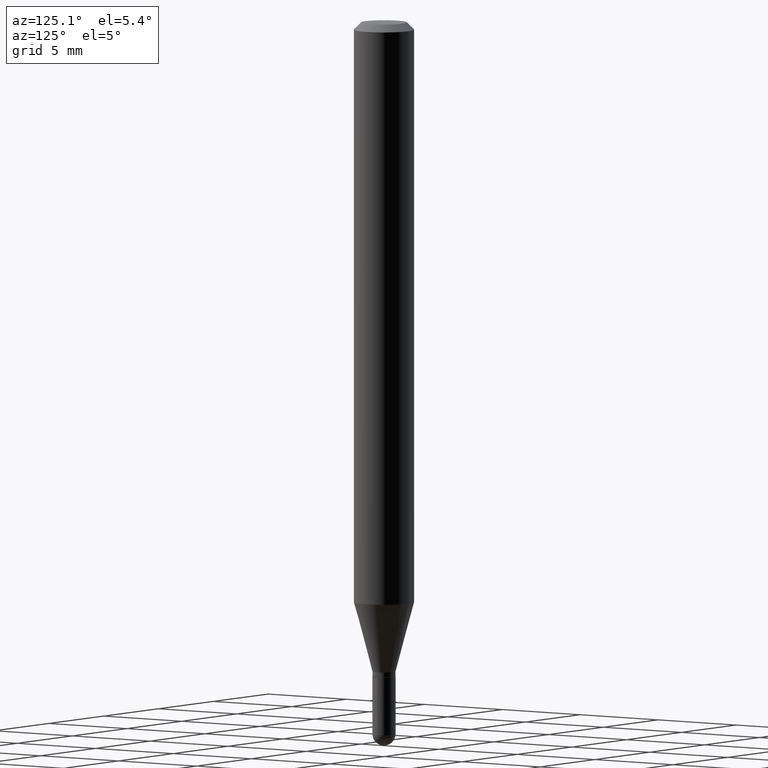
[diagram: clean part render]
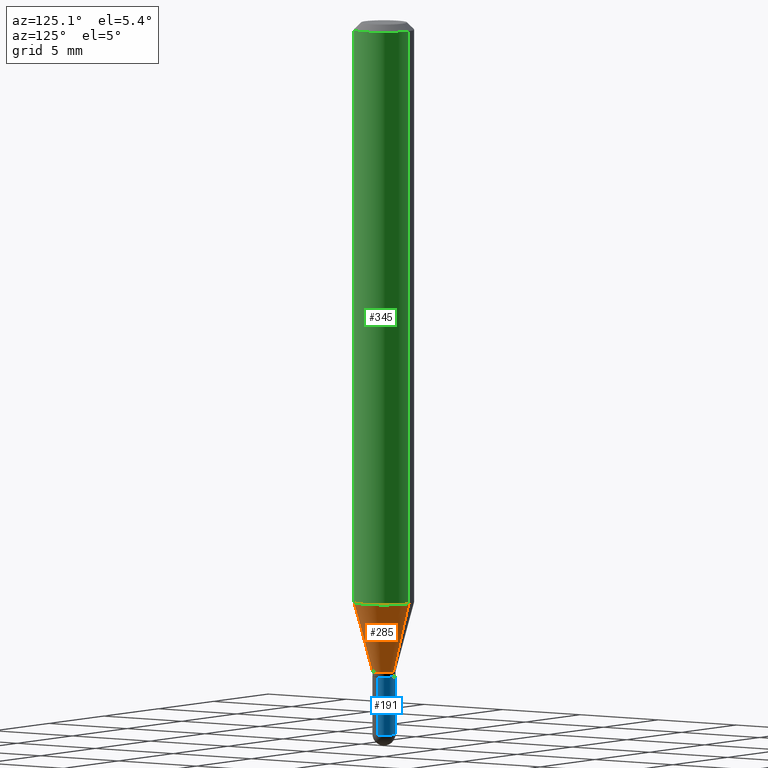
[diagram: same view with three faces highlighted in distinct colors, each labeled with its STEP entity id]
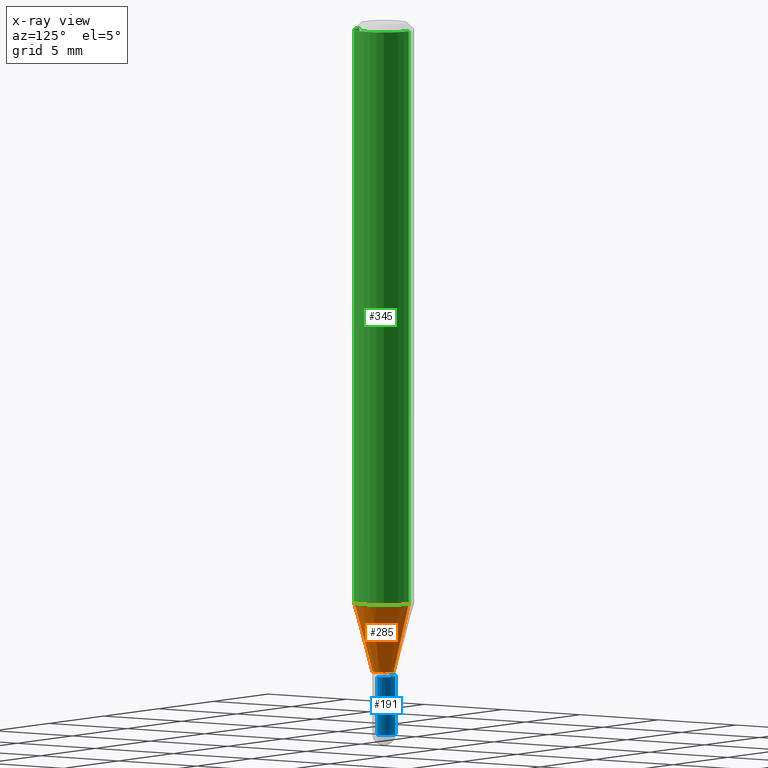
[diagram: x-ray of the same camera — body ghosted, the three highlighted faces saturated]
A machine part, auxiliary view with three faces highlighted in distinct colors.
The next image is the same camera in x-ray (body ghosted, the three faces saturated) — at least one of them is partly hidden behind the body in this view.
Their STEP definitions:

[orange] entity #285 — the highlighted conical surface has half-angle 15 deg.
#6 = AXIS2_PLACEMENT_3D ( 'NONE', #458, #24, #225 ) ;
#8 = CARTESIAN_POINT ( 'NONE',  ( -1.675911042644369543E-16, -0.02400000000000462527, -1.346000000000000085 ) ) ;
#24 = DIRECTION ( 'NONE',  ( -2.445477235489228020E-29, 3.491469267599920324E-15, 1.000000000000000000 ) ) ;
#54 = ORIENTED_EDGE ( 'NONE', *, *, #268, .F. ) ;
#64 = DIRECTION ( 'NONE',  ( 1.839019923739601893E-15, 0.2588190451025252359, 0.9659258262890670910 ) ) ;
#78 = DIRECTION ( 'NONE',  ( -6.982962677686265133E-15, -1.000000000000000000, 0.000000000000000000 ) ) ;
#91 = CIRCLE ( 'NONE', #141, 0.02399999999999992764 ) ;
#116 = VECTOR ( 'NONE', #64, 39.37007874015748854 ) ;
#121 = EDGE_CURVE ( 'NONE', #132, #506, #445, .T. ) ;
#132 = VERTEX_POINT ( 'NONE', #289 ) ;
#137 = CARTESIAN_POINT ( 'NONE',  ( 2.940236515241945390E-29, -4.197849517249188631E-15, -1.202316043908598697 ) ) ;
#141 = AXIS2_PLACEMENT_3D ( 'NONE', #352, #504, #78 ) ;
#158 = DIRECTION ( 'NONE',  ( -1.807323732225331717E-15, -0.2588190451025184080, 0.9659258262890689783 ) ) ;
#160 = ORIENTED_EDGE ( 'NONE', *, *, #246, .T. ) ;
#173 = DIRECTION ( 'NONE',  ( -2.445477235489228020E-29, 3.491469267599920324E-15, 1.000000000000000000 ) ) ;
#184 = CIRCLE ( 'NONE', #261, 0.06250000000000000000 ) ;
#225 = DIRECTION ( 'NONE',  ( -6.982962677686265133E-15, -1.000000000000000000, 0.000000000000000000 ) ) ;
#246 = EDGE_CURVE ( 'NONE', #443, #474, #344, .T. ) ;
#261 = AXIS2_PLACEMENT_3D ( 'NONE', #137, #173, #374 ) ;
#268 = EDGE_CURVE ( 'NONE', #506, #474, #184, .T. ) ;
#285 = ADVANCED_FACE ( 'NONE', ( #419 ), #490, .T. ) ;
#289 = CARTESIAN_POINT ( 'NONE',  ( -1.675911042644369543E-16, -0.02400000000000462527, -1.346000000000000085 ) ) ;
#324 = CARTESIAN_POINT ( 'NONE',  ( -4.364351673553623829E-16, -0.06250000000000421885, -1.202316043908598253 ) ) ;
#326 = VECTOR ( 'NONE', #158, 39.37007874015748854 ) ;
#344 = LINE ( 'NONE', #463, #116 ) ;
#352 = CARTESIAN_POINT ( 'NONE',  ( 3.291612358968501825E-29, -4.699517634189492675E-15, -1.346000000000000085 ) ) ;
#361 = EDGE_CURVE ( 'NONE', #132, #443, #91, .T. ) ;
#362 = CARTESIAN_POINT ( 'NONE',  ( 4.440892098500918040E-16, 0.06249999999999577421, -1.202316043908598919 ) ) ;
#374 = DIRECTION ( 'NONE',  ( -6.982962677686265922E-15, -1.000000000000000000, 4.370956789862821150E-15 ) ) ;
#384 = ORIENTED_EDGE ( 'NONE', *, *, #121, .F. ) ;
#419 = FACE_OUTER_BOUND ( 'NONE', #435, .T. ) ;
#429 = CARTESIAN_POINT ( 'NONE',  ( 3.073097332162742703E-16, 0.02399999999999522307, -1.346000000000000085 ) ) ;
#435 = EDGE_LOOP ( 'NONE', ( #497, #160, #54, #384 ) ) ;
#443 = VERTEX_POINT ( 'NONE', #429 ) ;
#445 = LINE ( 'NONE', #8, #326 ) ;
#458 = CARTESIAN_POINT ( 'NONE',  ( 3.291612358968501825E-29, -4.699517634189492675E-15, -1.346000000000000085 ) ) ;
#463 = CARTESIAN_POINT ( 'NONE',  ( 1.705302565824563915E-16, 0.02399999999999522654, -1.346000000000000085 ) ) ;
#474 = VERTEX_POINT ( 'NONE', #362 ) ;
#490 = CONICAL_SURFACE ( 'NONE', #6, 0.02399999999999992764, 0.2617993877991505181 ) ;
#497 = ORIENTED_EDGE ( 'NONE', *, *, #361, .T. ) ;
#504 = DIRECTION ( 'NONE',  ( -2.445477235489228020E-29, 3.491469267599920324E-15, 1.000000000000000000 ) ) ;
#506 = VERTEX_POINT ( 'NONE', #324 ) ;

[blue] entity #191 — the highlighted cylindrical surface (edge-blend (fillet) strip) has radius 0.6096 mm, axis along (-0, 0, 1).
#32 = DIRECTION ( 'NONE',  ( -2.445468806185136597E-29, 3.491481338843145583E-15, 1.000000000000000000 ) ) ;
#39 = VERTEX_POINT ( 'NONE', #413 ) ;
#46 = CARTESIAN_POINT ( 'NONE',  ( -0.02400000000000000397, -4.773407319219470337E-15, -1.475999999999999979 ) ) ;
#56 = DIRECTION ( 'NONE',  ( -2.445468806185136597E-29, 3.491481338843145583E-15, 1.000000000000000000 ) ) ;
#61 = AXIS2_PLACEMENT_3D ( 'NONE', #492, #56, #139 ) ;
#67 = VERTEX_POINT ( 'NONE', #81 ) ;
#76 = AXIS2_PLACEMENT_3D ( 'NONE', #103, #342, #382 ) ;
#80 = DIRECTION ( 'NONE',  ( -2.445468806185136597E-29, 3.491481338843145583E-15, 1.000000000000000000 ) ) ;
#81 = CARTESIAN_POINT ( 'NONE',  ( 0.02400000000000000397, -5.111528680066364398E-15, -1.475999999999999979 ) ) ;
#103 = CARTESIAN_POINT ( 'NONE',  ( 3.609511957929261635E-29, -5.153426456132482850E-15, -1.475999999999999979 ) ) ;
#111 = EDGE_LOOP ( 'NONE', ( #239, #449, #325, #279, #494 ) ) ;
#112 = CARTESIAN_POINT ( 'NONE',  ( 0.02400000000000000050, -4.902039799735776870E-15, -1.356000000000000316 ) ) ;
#124 = VERTEX_POINT ( 'NONE', #46 ) ;
#127 = DIRECTION ( 'NONE',  ( -2.445468806185136877E-29, 3.491481338843145188E-15, 1.000000000000000000 ) ) ;
#130 = CARTESIAN_POINT ( 'NONE',  ( 0.02400000000000000397, -1.675911042644704316E-16, 1.170282426191024667E-30 ) ) ;
#139 = DIRECTION ( 'NONE',  ( 1.000000000000000000, -6.982962677686266711E-15, 4.876176775795935232E-29 ) ) ;
#142 = DIRECTION ( 'NONE',  ( -2.445468806185136877E-29, 3.491481338843145188E-15, 1.000000000000000000 ) ) ;
#144 = LINE ( 'NONE', #351, #209 ) ;
#175 = CIRCLE ( 'NONE', #470, 0.02400000000000000050 ) ;
#182 = LINE ( 'NONE', #130, #241 ) ;
#186 = EDGE_CURVE ( 'NONE', #67, #39, #306, .T. ) ;
#191 = ADVANCED_FACE ( 'NONE', ( #299 ), #216, .T. ) ;
#193 = DIRECTION ( 'NONE',  ( 1.000000000000000000, -6.982962677686250144E-15, 0.000000000000000000 ) ) ;
#209 = VECTOR ( 'NONE', #142, 39.37007874015748143 ) ;
#216 = CYLINDRICAL_SURFACE ( 'NONE', #61, 0.02400000000000000397 ) ;
#220 = AXIS2_PLACEMENT_3D ( 'NONE', #396, #32, #193 ) ;
#234 = CARTESIAN_POINT ( 'NONE',  ( -0.02400000000000000050, -4.773407319219470337E-15, -1.356000000000000316 ) ) ;
#239 = ORIENTED_EDGE ( 'NONE', *, *, #452, .T. ) ;
#241 = VECTOR ( 'NONE', #127, 39.37007874015748143 ) ;
#244 = CARTESIAN_POINT ( 'NONE',  ( 3.316055701187045333E-29, -4.734448695471306216E-15, -1.356000000000000316 ) ) ;
#274 = CIRCLE ( 'NONE', #220, 0.02400000000000000397 ) ;
#279 = ORIENTED_EDGE ( 'NONE', *, *, #288, .F. ) ;
#288 = EDGE_CURVE ( 'NONE', #67, #312, #182, .T. ) ;
#299 = FACE_OUTER_BOUND ( 'NONE', #111, .T. ) ;
#306 = CIRCLE ( 'NONE', #76, 0.02400000000000000397 ) ;
#312 = VERTEX_POINT ( 'NONE', #112 ) ;
#325 = ORIENTED_EDGE ( 'NONE', *, *, #468, .F. ) ;
#342 = DIRECTION ( 'NONE',  ( -2.445468806185136597E-29, 3.491481338843145583E-15, 1.000000000000000000 ) ) ;
#351 = CARTESIAN_POINT ( 'NONE',  ( -0.02400000000000000397, 1.705302565824240728E-16, -1.180544421661177751E-30 ) ) ;
#363 = VERTEX_POINT ( 'NONE', #234 ) ;
#382 = DIRECTION ( 'NONE',  ( 1.000000000000000000, -6.982962677686250144E-15, 0.000000000000000000 ) ) ;
#385 = EDGE_CURVE ( 'NONE', #124, #363, #144, .T. ) ;
#396 = CARTESIAN_POINT ( 'NONE',  ( 3.609511957929261635E-29, -5.153426456132482850E-15, -1.475999999999999979 ) ) ;
#406 = DIRECTION ( 'NONE',  ( 1.000000000000000000, -6.982962677686251722E-15, 0.000000000000000000 ) ) ;
#413 = CARTESIAN_POINT ( 'NONE',  ( 1.675911042645066206E-16, 0.02399999999999486572, -1.475999999999999979 ) ) ;
#449 = ORIENTED_EDGE ( 'NONE', *, *, #385, .T. ) ;
#452 = EDGE_CURVE ( 'NONE', #39, #124, #274, .T. ) ;
#468 = EDGE_CURVE ( 'NONE', #312, #363, #175, .T. ) ;
#470 = AXIS2_PLACEMENT_3D ( 'NONE', #244, #80, #406 ) ;
#492 = CARTESIAN_POINT ( 'NONE',  ( 0.000000000000000000, 0.000000000000000000, 0.000000000000000000 ) ) ;
#494 = ORIENTED_EDGE ( 'NONE', *, *, #186, .T. ) ;

[green] entity #345 — the highlighted cylindrical surface (edge-blend (fillet) strip) has radius 1.5875 mm, axis along (-0, 0, 1).
#1 = LINE ( 'NONE', #390, #440 ) ;
#3 = LINE ( 'NONE', #154, #249 ) ;
#28 = EDGE_LOOP ( 'NONE', ( #135, #367, #195, #198 ) ) ;
#35 = CIRCLE ( 'NONE', #350, 0.06250000000000000000 ) ;
#69 = AXIS2_PLACEMENT_3D ( 'NONE', #187, #399, #475 ) ;
#71 = VERTEX_POINT ( 'NONE', #251 ) ;
#96 = CARTESIAN_POINT ( 'NONE',  ( 3.668215853233844657E-31, -5.237203901399883839E-17, -0.01500000000000000812 ) ) ;
#118 = CARTESIAN_POINT ( 'NONE',  ( -4.364351673553912750E-16, -0.06250000000000005551, -0.01499999999999979128 ) ) ;
#135 = ORIENTED_EDGE ( 'NONE', *, *, #268, .T. ) ;
#137 = CARTESIAN_POINT ( 'NONE',  ( 2.940236515241945390E-29, -4.197849517249188631E-15, -1.202316043908598697 ) ) ;
#154 = CARTESIAN_POINT ( 'NONE',  ( 4.440892098500625669E-16, 0.06250000000000000000, -2.182168292249950203E-16 ) ) ;
#173 = DIRECTION ( 'NONE',  ( -2.445477235489228020E-29, 3.491469267599920324E-15, 1.000000000000000000 ) ) ;
#184 = CIRCLE ( 'NONE', #261, 0.06250000000000000000 ) ;
#187 = CARTESIAN_POINT ( 'NONE',  ( 0.000000000000000000, 0.000000000000000000, 0.000000000000000000 ) ) ;
#189 = FACE_OUTER_BOUND ( 'NONE', #28, .T. ) ;
#195 = ORIENTED_EDGE ( 'NONE', *, *, #201, .F. ) ;
#198 = ORIENTED_EDGE ( 'NONE', *, *, #373, .F. ) ;
#201 = EDGE_CURVE ( 'NONE', #510, #71, #35, .T. ) ;
#228 = CYLINDRICAL_SURFACE ( 'NONE', #69, 0.06250000000000000000 ) ;
#242 = DIRECTION ( 'NONE',  ( -2.445477235489228300E-29, 3.491469267599920324E-15, 1.000000000000000000 ) ) ;
#249 = VECTOR ( 'NONE', #284, 39.37007874015748143 ) ;
#251 = CARTESIAN_POINT ( 'NONE',  ( 4.440892098500920998E-16, 0.06249999999999993755, -0.01500000000000022669 ) ) ;
#261 = AXIS2_PLACEMENT_3D ( 'NONE', #137, #173, #374 ) ;
#268 = EDGE_CURVE ( 'NONE', #506, #474, #184, .T. ) ;
#284 = DIRECTION ( 'NONE',  ( -2.445477235489228300E-29, 3.491469267599920324E-15, 1.000000000000000000 ) ) ;
#324 = CARTESIAN_POINT ( 'NONE',  ( -4.364351673553623829E-16, -0.06250000000000421885, -1.202316043908598253 ) ) ;
#345 = ADVANCED_FACE ( 'NONE', ( #189 ), #228, .T. ) ;
#350 = AXIS2_PLACEMENT_3D ( 'NONE', #96, #386, #457 ) ;
#362 = CARTESIAN_POINT ( 'NONE',  ( 4.440892098500918040E-16, 0.06249999999999577421, -1.202316043908598919 ) ) ;
#367 = ORIENTED_EDGE ( 'NONE', *, *, #476, .T. ) ;
#373 = EDGE_CURVE ( 'NONE', #506, #510, #1, .T. ) ;
#374 = DIRECTION ( 'NONE',  ( -6.982962677686265922E-15, -1.000000000000000000, 4.370956789862821150E-15 ) ) ;
#386 = DIRECTION ( 'NONE',  ( -2.445477235489228020E-29, 3.491469267599920324E-15, 1.000000000000000000 ) ) ;
#390 = CARTESIAN_POINT ( 'NONE',  ( -4.364351673553916201E-16, -0.06250000000000000000, 2.182168292249950203E-16 ) ) ;
#399 = DIRECTION ( 'NONE',  ( -2.445477235489228020E-29, 3.491469267599920324E-15, 1.000000000000000000 ) ) ;
#440 = VECTOR ( 'NONE', #242, 39.37007874015748143 ) ;
#457 = DIRECTION ( 'NONE',  ( -6.982962677686265922E-15, -1.000000000000000000, 3.483106191921935554E-15 ) ) ;
#474 = VERTEX_POINT ( 'NONE', #362 ) ;
#475 = DIRECTION ( 'NONE',  ( -6.982962677686265922E-15, -1.000000000000000000, 3.491469267599920324E-15 ) ) ;
#476 = EDGE_CURVE ( 'NONE', #474, #71, #3, .T. ) ;
#506 = VERTEX_POINT ( 'NONE', #324 ) ;
#510 = VERTEX_POINT ( 'NONE', #118 ) ;